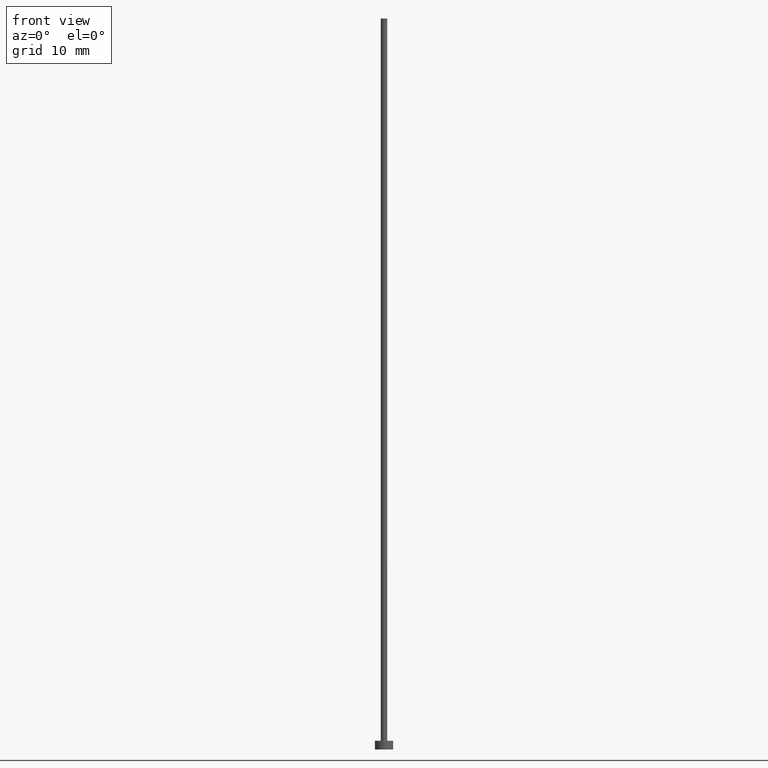
[diagram: clean part render]
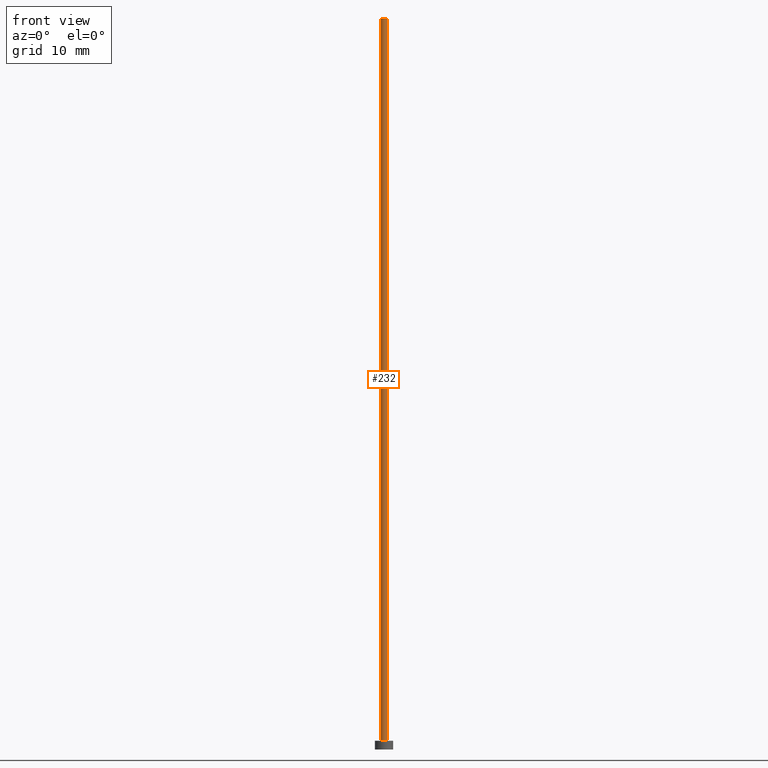
[diagram: same view with one face highlighted and labeled with its STEP entity id]
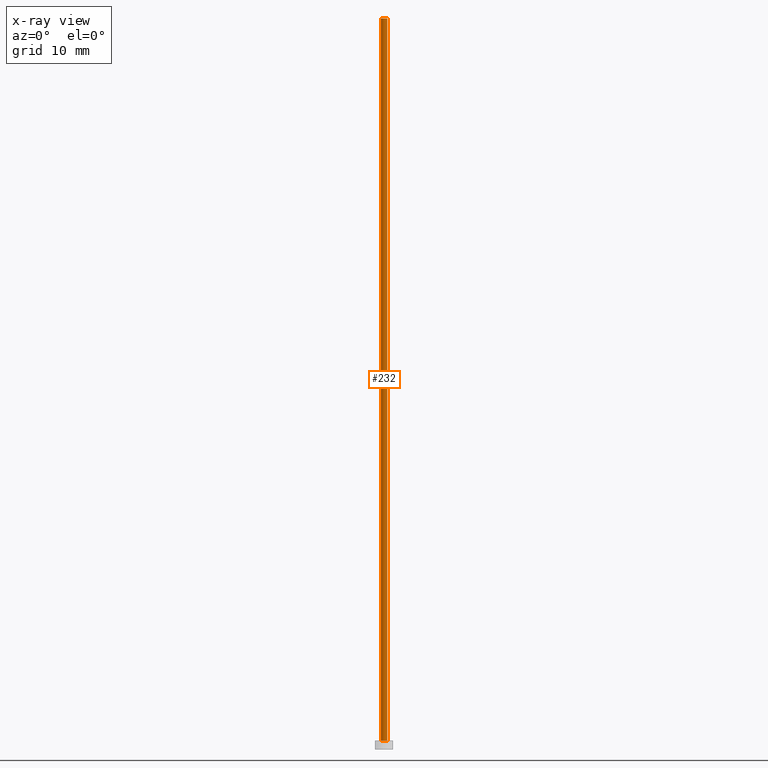
[diagram: x-ray of the same camera — body ghosted, the highlighted face saturated]
A machine part, front view. The second image highlights one B-rep face of the part: STEP entity #232.
The next image is the same camera in x-ray: the body ghosted, the highlighted face saturated — about 0% of this face is hidden behind the body in this view.
In plain terms, the highlighted cylindrical surface (edge-blend (fillet) strip) has radius 0.45 mm, axis along (-0, -0, -1).
Its self-contained STEP definition (entity closure, byte-faithful):
#12 = AXIS2_PLACEMENT_3D ( 'NONE', #67, #138, #209 ) ;
#20 = CARTESIAN_POINT ( 'NONE',  ( 0.000000000000000000, 0.000000000000000000, 100.0000000000000000 ) ) ;
#38 = DIRECTION ( 'NONE',  ( 1.000000000000000000, 0.000000000000000000, 0.000000000000000000 ) ) ;
#40 = DIRECTION ( 'NONE',  ( -1.000000000000000000, 0.000000000000000000, 0.000000000000000000 ) ) ;
#43 = LINE ( 'NONE', #115, #132 ) ;
#47 = VERTEX_POINT ( 'NONE', #170 ) ;
#55 = VERTEX_POINT ( 'NONE', #246 ) ;
#60 = CARTESIAN_POINT ( 'NONE',  ( -0.4500000000000000111, 0.000000000000000000, 100.0000000000000000 ) ) ;
#62 = AXIS2_PLACEMENT_3D ( 'NONE', #20, #230, #38 ) ;
#67 = CARTESIAN_POINT ( 'NONE',  ( 0.000000000000000000, 0.000000000000000000, 1.199999999999999956 ) ) ;
#91 = VERTEX_POINT ( 'NONE', #185 ) ;
#101 = EDGE_CURVE ( 'NONE', #55, #91, #187, .T. ) ;
#115 = CARTESIAN_POINT ( 'NONE',  ( -0.4500000000000000111, 0.000000000000000000, 100.0000000000000000 ) ) ;
#126 = ORIENTED_EDGE ( 'NONE', *, *, #101, .F. ) ;
#127 = EDGE_CURVE ( 'NONE', #201, #47, #43, .T. ) ;
#132 = VECTOR ( 'NONE', #234, 1000.000000000000000 ) ;
#137 = AXIS2_PLACEMENT_3D ( 'NONE', #228, #152, #40 ) ;
#138 = DIRECTION ( 'NONE',  ( 0.000000000000000000, 0.000000000000000000, 1.000000000000000000 ) ) ;
#139 = EDGE_CURVE ( 'NONE', #47, #91, #162, .T. ) ;
#145 = ORIENTED_EDGE ( 'NONE', *, *, #127, .T. ) ;
#152 = DIRECTION ( 'NONE',  ( -0.000000000000000000, -0.000000000000000000, -1.000000000000000000 ) ) ;
#162 = CIRCLE ( 'NONE', #12, 0.4500000000000000111 ) ;
#170 = CARTESIAN_POINT ( 'NONE',  ( -0.4500000000000000111, 0.000000000000000000, 1.199999999999999956 ) ) ;
#171 = CARTESIAN_POINT ( 'NONE',  ( 0.4500000000000000111, 5.510910596163088939E-17, 100.0000000000000000 ) ) ;
#175 = CIRCLE ( 'NONE', #62, 0.4500000000000000111 ) ;
#177 = VECTOR ( 'NONE', #249, 1000.000000000000000 ) ;
#183 = ORIENTED_EDGE ( 'NONE', *, *, #139, .T. ) ;
#184 = EDGE_CURVE ( 'NONE', #201, #55, #175, .T. ) ;
#185 = CARTESIAN_POINT ( 'NONE',  ( 0.4500000000000000111, 5.510910596163088939E-17, 1.199999999999999956 ) ) ;
#187 = LINE ( 'NONE', #171, #177 ) ;
#196 = FACE_OUTER_BOUND ( 'NONE', #241, .T. ) ;
#201 = VERTEX_POINT ( 'NONE', #60 ) ;
#209 = DIRECTION ( 'NONE',  ( 1.000000000000000000, 0.000000000000000000, 0.000000000000000000 ) ) ;
#211 = CYLINDRICAL_SURFACE ( 'NONE', #137, 0.4500000000000000111 ) ;
#228 = CARTESIAN_POINT ( 'NONE',  ( 0.000000000000000000, 0.000000000000000000, 100.0000000000000000 ) ) ;
#230 = DIRECTION ( 'NONE',  ( 0.000000000000000000, 0.000000000000000000, 1.000000000000000000 ) ) ;
#232 = ADVANCED_FACE ( 'NONE', ( #196 ), #211, .T. ) ;
#234 = DIRECTION ( 'NONE',  ( -0.000000000000000000, -0.000000000000000000, -1.000000000000000000 ) ) ;
#240 = ORIENTED_EDGE ( 'NONE', *, *, #184, .F. ) ;
#241 = EDGE_LOOP ( 'NONE', ( #126, #240, #145, #183 ) ) ;
#246 = CARTESIAN_POINT ( 'NONE',  ( 0.4500000000000000111, 5.510910596163088939E-17, 100.0000000000000000 ) ) ;
#249 = DIRECTION ( 'NONE',  ( -0.000000000000000000, -0.000000000000000000, -1.000000000000000000 ) ) ;